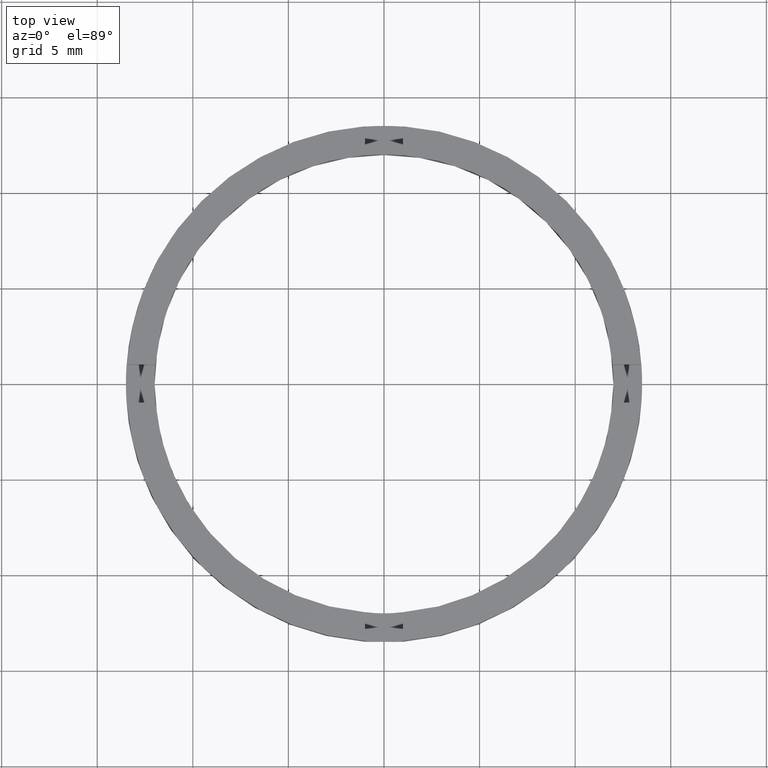
[diagram: clean part render]
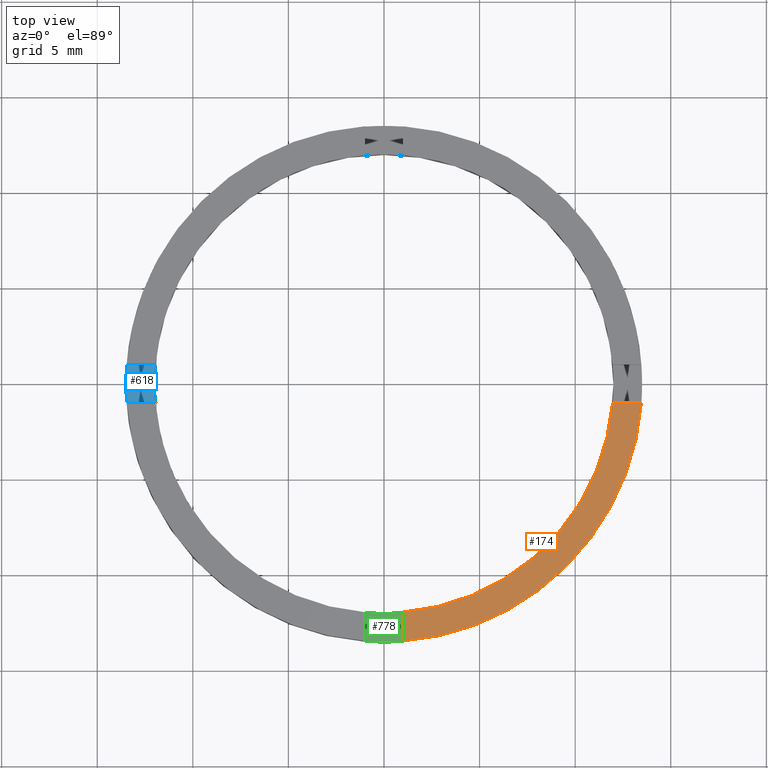
[diagram: same view with three faces highlighted in distinct colors, each labeled with its STEP entity id]
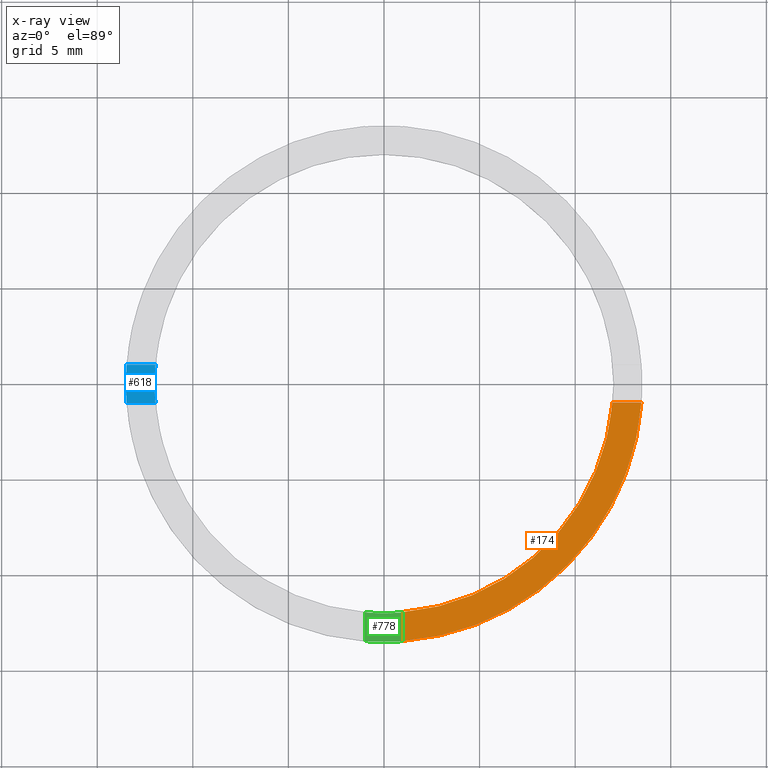
[diagram: x-ray of the same camera — body ghosted, the three highlighted faces saturated]
A machine part, top view with three faces highlighted in distinct colors.
The next image is the same camera in x-ray (body ghosted, the three faces saturated) — at least one of them is partly hidden behind the body in this view.
Their STEP definitions:

[orange] entity #174 — the highlighted planar face has unit normal (0, 0, 1).
#7 = CIRCLE ( 'NONE', #391, 12.00000000000000178 ) ;
#43 = LINE ( 'NONE', #433, #319 ) ;
#56 = CARTESIAN_POINT ( 'NONE',  ( 0.000000000000000000, 0.000000000000000000, 2.500000000000000000 ) ) ;
#64 = DIRECTION ( 'NONE',  ( 0.000000000000000000, 0.000000000000000000, 1.000000000000000000 ) ) ;
#101 = DIRECTION ( 'NONE',  ( 1.000000000000000000, 0.000000000000000000, 0.000000000000000000 ) ) ;
#112 = DIRECTION ( 'NONE',  ( 1.000000000000000000, 0.000000000000000000, 0.000000000000000000 ) ) ;
#133 = ORIENTED_EDGE ( 'NONE', *, *, #574, .F. ) ;
#164 = AXIS2_PLACEMENT_3D ( 'NONE', #56, #446, #326 ) ;
#174 = ADVANCED_FACE ( 'NONE', ( #539 ), #211, .T. ) ;
#195 = VERTEX_POINT ( 'NONE', #507 ) ;
#211 = PLANE ( 'NONE',  #164 ) ;
#220 = ORIENTED_EDGE ( 'NONE', *, *, #250, .T. ) ;
#250 = EDGE_CURVE ( 'NONE', #663, #195, #530, .T. ) ;
#261 = LINE ( 'NONE', #694, #518 ) ;
#268 = EDGE_CURVE ( 'NONE', #401, #430, #7, .T. ) ;
#296 = CARTESIAN_POINT ( 'NONE',  ( 0.9999999999998365752, -11.95826074310141429, 2.500000000000000000 ) ) ;
#319 = VECTOR ( 'NONE', #494, 1000.000000000000000 ) ;
#326 = DIRECTION ( 'NONE',  ( 1.000000000000000000, 0.000000000000000000, -0.000000000000000000 ) ) ;
#366 = CARTESIAN_POINT ( 'NONE',  ( 0.9999999999998366862, -13.46291201783627045, 2.500000000000000000 ) ) ;
#380 = DIRECTION ( 'NONE',  ( -1.301042606982605567E-16, 1.000000000000000000, -0.000000000000000000 ) ) ;
#391 = AXIS2_PLACEMENT_3D ( 'NONE', #744, #64, #112 ) ;
#401 = VERTEX_POINT ( 'NONE', #296 ) ;
#430 = VERTEX_POINT ( 'NONE', #492 ) ;
#433 = CARTESIAN_POINT ( 'NONE',  ( 3.499999999999999556, -1.000000000000160094, 2.500000000000000000 ) ) ;
#435 = ORIENTED_EDGE ( 'NONE', *, *, #542, .F. ) ;
#446 = DIRECTION ( 'NONE',  ( 0.000000000000000000, 0.000000000000000000, 1.000000000000000000 ) ) ;
#492 = CARTESIAN_POINT ( 'NONE',  ( 11.95826074310138765, -1.000000000000159872, 2.500000000000000000 ) ) ;
#494 = DIRECTION ( 'NONE',  ( 1.000000000000000000, 4.336808689942018352E-17, 0.000000000000000000 ) ) ;
#507 = CARTESIAN_POINT ( 'NONE',  ( 13.46291201783624736, -1.000000000000159650, 2.500000000000000000 ) ) ;
#518 = VECTOR ( 'NONE', #380, 1000.000000000000000 ) ;
#530 = CIRCLE ( 'NONE', #742, 13.50000000000000000 ) ;
#539 = FACE_OUTER_BOUND ( 'NONE', #753, .T. ) ;
#542 = EDGE_CURVE ( 'NONE', #663, #401, #261, .T. ) ;
#574 = EDGE_CURVE ( 'NONE', #430, #195, #43, .T. ) ;
#663 = VERTEX_POINT ( 'NONE', #366 ) ;
#664 = CARTESIAN_POINT ( 'NONE',  ( 0.000000000000000000, 0.000000000000000000, 2.500000000000000000 ) ) ;
#665 = ORIENTED_EDGE ( 'NONE', *, *, #268, .F. ) ;
#694 = CARTESIAN_POINT ( 'NONE',  ( 0.9999999999998354649, -3.500000000000183409, 2.500000000000000000 ) ) ;
#742 = AXIS2_PLACEMENT_3D ( 'NONE', #664, #752, #101 ) ;
#744 = CARTESIAN_POINT ( 'NONE',  ( 0.000000000000000000, 0.000000000000000000, 2.500000000000000000 ) ) ;
#752 = DIRECTION ( 'NONE',  ( 0.000000000000000000, 0.000000000000000000, 1.000000000000000000 ) ) ;
#753 = EDGE_LOOP ( 'NONE', ( #133, #665, #435, #220 ) ) ;

[blue] entity #618 — the highlighted planar face has unit normal (0, 0, 1).
#12 = AXIS2_PLACEMENT_3D ( 'NONE', #343, #740, #346 ) ;
#15 = CARTESIAN_POINT ( 'NONE',  ( 0.000000000000000000, 0.000000000000000000, 1.500000000000000000 ) ) ;
#18 = PLANE ( 'NONE',  #465 ) ;
#19 = CIRCLE ( 'NONE', #750, 13.50000000000000000 ) ;
#52 = CARTESIAN_POINT ( 'NONE',  ( -13.50000000000000000, 0.000000000000000000, 1.500000000000000000 ) ) ;
#63 = DIRECTION ( 'NONE',  ( 0.000000000000000000, 0.000000000000000000, 1.000000000000000000 ) ) ;
#100 = CARTESIAN_POINT ( 'NONE',  ( -13.46291201783625802, -1.000000000000022649, 1.500000000000000000 ) ) ;
#108 = AXIS2_PLACEMENT_3D ( 'NONE', #15, #63, #109 ) ;
#109 = DIRECTION ( 'NONE',  ( 1.000000000000000000, 0.000000000000000000, 0.000000000000000000 ) ) ;
#155 = ORIENTED_EDGE ( 'NONE', *, *, #587, .F. ) ;
#158 = ORIENTED_EDGE ( 'NONE', *, *, #505, .T. ) ;
#171 = ORIENTED_EDGE ( 'NONE', *, *, #749, .T. ) ;
#193 = VERTEX_POINT ( 'NONE', #322 ) ;
#214 = ORIENTED_EDGE ( 'NONE', *, *, #342, .T. ) ;
#216 = CARTESIAN_POINT ( 'NONE',  ( -13.46291201783626157, 0.9999999999999774625, 1.500000000000000000 ) ) ;
#225 = EDGE_LOOP ( 'NONE', ( #171, #759, #158, #634, #155, #214 ) ) ;
#226 = CARTESIAN_POINT ( 'NONE',  ( 0.000000000000000000, 0.000000000000000000, 1.500000000000000000 ) ) ;
#277 = DIRECTION ( 'NONE',  ( 0.000000000000000000, 0.000000000000000000, 1.000000000000000000 ) ) ;
#297 = CIRCLE ( 'NONE', #108, 12.00000000000000178 ) ;
#322 = CARTESIAN_POINT ( 'NONE',  ( -11.95826074310139830, -1.000000000000022427, 1.500000000000000000 ) ) ;
#342 = EDGE_CURVE ( 'NONE', #422, #713, #497, .T. ) ;
#343 = CARTESIAN_POINT ( 'NONE',  ( 0.000000000000000000, 0.000000000000000000, 1.500000000000000000 ) ) ;
#346 = DIRECTION ( 'NONE',  ( 1.000000000000000000, 0.000000000000000000, 0.000000000000000000 ) ) ;
#364 = CARTESIAN_POINT ( 'NONE',  ( -3.500000000000186962, -1.000000000000020872, 1.500000000000000000 ) ) ;
#379 = VERTEX_POINT ( 'NONE', #582 ) ;
#422 = VERTEX_POINT ( 'NONE', #632 ) ;
#427 = VERTEX_POINT ( 'NONE', #100 ) ;
#447 = DIRECTION ( 'NONE',  ( 0.000000000000000000, 0.000000000000000000, 1.000000000000000000 ) ) ;
#465 = AXIS2_PLACEMENT_3D ( 'NONE', #226, #447, #514 ) ;
#473 = VERTEX_POINT ( 'NONE', #52 ) ;
#484 = VECTOR ( 'NONE', #586, 1000.000000000000000 ) ;
#497 = LINE ( 'NONE', #719, #484 ) ;
#499 = DIRECTION ( 'NONE',  ( 0.000000000000000000, 0.000000000000000000, 1.000000000000000000 ) ) ;
#505 = EDGE_CURVE ( 'NONE', #427, #193, #769, .T. ) ;
#514 = DIRECTION ( 'NONE',  ( 1.000000000000000000, 0.000000000000000000, -0.000000000000000000 ) ) ;
#520 = CIRCLE ( 'NONE', #12, 13.50000000000000000 ) ;
#561 = EDGE_CURVE ( 'NONE', #473, #427, #520, .T. ) ;
#567 = CIRCLE ( 'NONE', #783, 12.00000000000000178 ) ;
#570 = FACE_OUTER_BOUND ( 'NONE', #225, .T. ) ;
#582 = CARTESIAN_POINT ( 'NONE',  ( -12.00000000000000178, 0.000000000000000000, 1.500000000000000000 ) ) ;
#586 = DIRECTION ( 'NONE',  ( -1.000000000000000000, -1.734723475976807341E-16, 0.000000000000000000 ) ) ;
#587 = EDGE_CURVE ( 'NONE', #422, #379, #567, .T. ) ;
#599 = DIRECTION ( 'NONE',  ( 1.000000000000000000, 0.000000000000000000, 0.000000000000000000 ) ) ;
#606 = CARTESIAN_POINT ( 'NONE',  ( 0.000000000000000000, 0.000000000000000000, 1.500000000000000000 ) ) ;
#615 = DIRECTION ( 'NONE',  ( 1.000000000000000000, 1.734723475976807341E-16, -0.000000000000000000 ) ) ;
#618 = ADVANCED_FACE ( 'NONE', ( #570 ), #18, .T. ) ;
#632 = CARTESIAN_POINT ( 'NONE',  ( -11.95826074310140186, 0.9999999999999776845, 1.500000000000000000 ) ) ;
#633 = DIRECTION ( 'NONE',  ( 1.000000000000000000, 0.000000000000000000, 0.000000000000000000 ) ) ;
#634 = ORIENTED_EDGE ( 'NONE', *, *, #722, .F. ) ;
#713 = VERTEX_POINT ( 'NONE', #216 ) ;
#719 = CARTESIAN_POINT ( 'NONE',  ( -3.500000000000186962, 0.9999999999999792388, 1.500000000000000000 ) ) ;
#722 = EDGE_CURVE ( 'NONE', #379, #193, #297, .T. ) ;
#726 = CARTESIAN_POINT ( 'NONE',  ( 0.000000000000000000, 0.000000000000000000, 1.500000000000000000 ) ) ;
#740 = DIRECTION ( 'NONE',  ( 0.000000000000000000, 0.000000000000000000, 1.000000000000000000 ) ) ;
#749 = EDGE_CURVE ( 'NONE', #713, #473, #19, .T. ) ;
#750 = AXIS2_PLACEMENT_3D ( 'NONE', #606, #277, #599 ) ;
#759 = ORIENTED_EDGE ( 'NONE', *, *, #561, .T. ) ;
#769 = LINE ( 'NONE', #364, #773 ) ;
#773 = VECTOR ( 'NONE', #615, 1000.000000000000000 ) ;
#783 = AXIS2_PLACEMENT_3D ( 'NONE', #726, #499, #633 ) ;

[green] entity #778 — the highlighted planar face has unit normal (-0, 0, 1).
#6 = CIRCLE ( 'NONE', #67, 12.00000000000000178 ) ;
#20 = CARTESIAN_POINT ( 'NONE',  ( 0.000000000000000000, 0.000000000000000000, 1.500000000000000000 ) ) ;
#49 = DIRECTION ( 'NONE',  ( -0.000000000000000000, 0.000000000000000000, 1.000000000000000000 ) ) ;
#57 = CARTESIAN_POINT ( 'NONE',  ( 0.000000000000000000, 0.000000000000000000, 1.500000000000000000 ) ) ;
#67 = AXIS2_PLACEMENT_3D ( 'NONE', #339, #470, #477 ) ;
#89 = EDGE_CURVE ( 'NONE', #242, #162, #712, .T. ) ;
#117 = DIRECTION ( 'NONE',  ( -0.000000000000000000, 0.000000000000000000, 1.000000000000000000 ) ) ;
#134 = CARTESIAN_POINT ( 'NONE',  ( -1.000000000000163425, -11.95826074310138765, 1.500000000000000000 ) ) ;
#162 = VERTEX_POINT ( 'NONE', #361 ) ;
#188 = VERTEX_POINT ( 'NONE', #334 ) ;
#208 = DIRECTION ( 'NONE',  ( 1.000000000000000000, 0.000000000000000000, 0.000000000000000000 ) ) ;
#223 = ORIENTED_EDGE ( 'NONE', *, *, #580, .T. ) ;
#235 = VECTOR ( 'NONE', #617, 1000.000000000000000 ) ;
#242 = VERTEX_POINT ( 'NONE', #134 ) ;
#287 = PLANE ( 'NONE',  #755 ) ;
#325 = EDGE_CURVE ( 'NONE', #242, #188, #6, .T. ) ;
#332 = DIRECTION ( 'NONE',  ( 1.000000000000000000, 0.000000000000000000, 0.000000000000000000 ) ) ;
#334 = CARTESIAN_POINT ( 'NONE',  ( 0.9999999999998365752, -11.95826074310141429, 1.500000000000000000 ) ) ;
#339 = CARTESIAN_POINT ( 'NONE',  ( 0.000000000000000000, 0.000000000000000000, 1.500000000000000000 ) ) ;
#345 = CARTESIAN_POINT ( 'NONE',  ( 0.9999999999998366862, -13.46291201783627045, 1.500000000000000000 ) ) ;
#350 = DIRECTION ( 'NONE',  ( 1.301042606982605567E-16, -1.000000000000000000, 0.000000000000000000 ) ) ;
#356 = EDGE_CURVE ( 'NONE', #439, #188, #761, .T. ) ;
#361 = CARTESIAN_POINT ( 'NONE',  ( -1.000000000000163203, -13.46291201783624736, 1.500000000000000000 ) ) ;
#436 = VECTOR ( 'NONE', #350, 1000.000000000000000 ) ;
#439 = VERTEX_POINT ( 'NONE', #345 ) ;
#442 = ORIENTED_EDGE ( 'NONE', *, *, #356, .T. ) ;
#455 = EDGE_LOOP ( 'NONE', ( #223, #442, #732, #642 ) ) ;
#470 = DIRECTION ( 'NONE',  ( -0.000000000000000000, 0.000000000000000000, 1.000000000000000000 ) ) ;
#477 = DIRECTION ( 'NONE',  ( 1.000000000000000000, 0.000000000000000000, 0.000000000000000000 ) ) ;
#555 = FACE_OUTER_BOUND ( 'NONE', #455, .T. ) ;
#572 = CIRCLE ( 'NONE', #579, 13.50000000000000000 ) ;
#579 = AXIS2_PLACEMENT_3D ( 'NONE', #57, #49, #208 ) ;
#580 = EDGE_CURVE ( 'NONE', #162, #439, #572, .T. ) ;
#585 = CARTESIAN_POINT ( 'NONE',  ( -1.000000000000164535, -3.500000000000183409, 1.500000000000000000 ) ) ;
#617 = DIRECTION ( 'NONE',  ( -1.301042606982605567E-16, 1.000000000000000000, -0.000000000000000000 ) ) ;
#642 = ORIENTED_EDGE ( 'NONE', *, *, #89, .T. ) ;
#712 = LINE ( 'NONE', #585, #436 ) ;
#732 = ORIENTED_EDGE ( 'NONE', *, *, #325, .F. ) ;
#755 = AXIS2_PLACEMENT_3D ( 'NONE', #20, #117, #332 ) ;
#761 = LINE ( 'NONE', #767, #235 ) ;
#767 = CARTESIAN_POINT ( 'NONE',  ( 0.9999999999998354649, -3.500000000000183409, 1.500000000000000000 ) ) ;
#778 = ADVANCED_FACE ( 'NONE', ( #555 ), #287, .T. ) ;